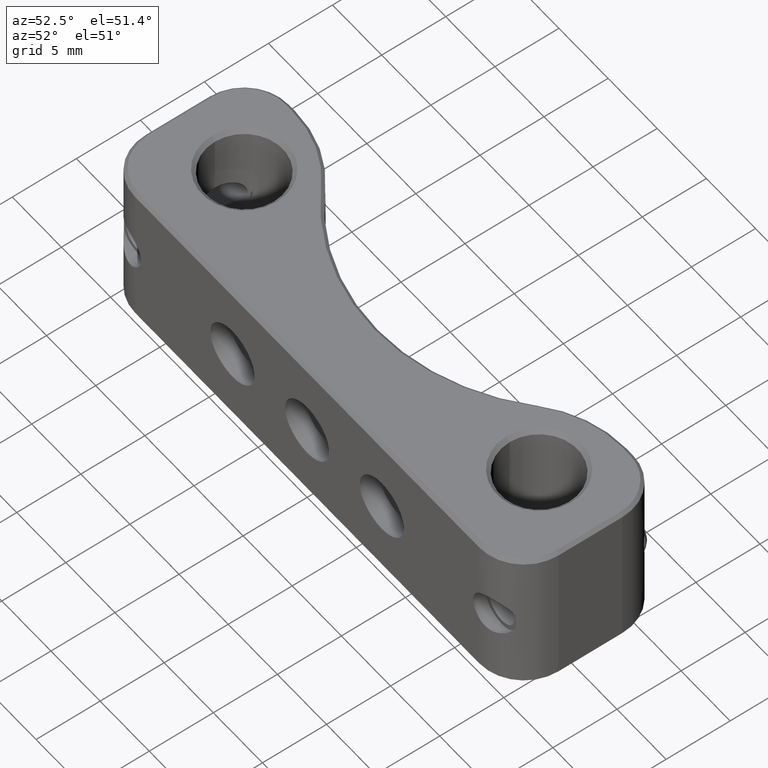
[diagram: clean part render]
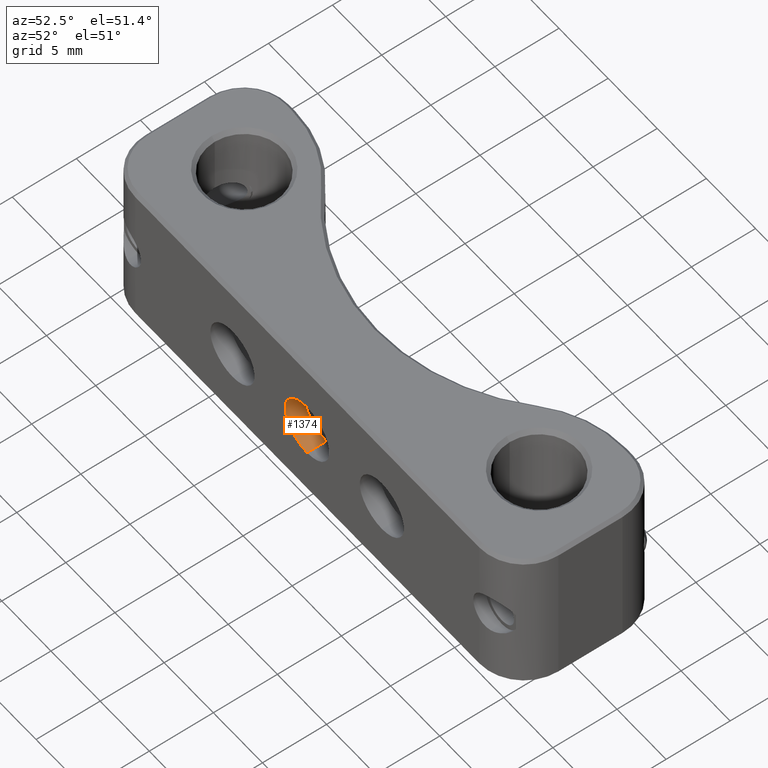
[diagram: same view with one face highlighted and labeled with its STEP entity id]
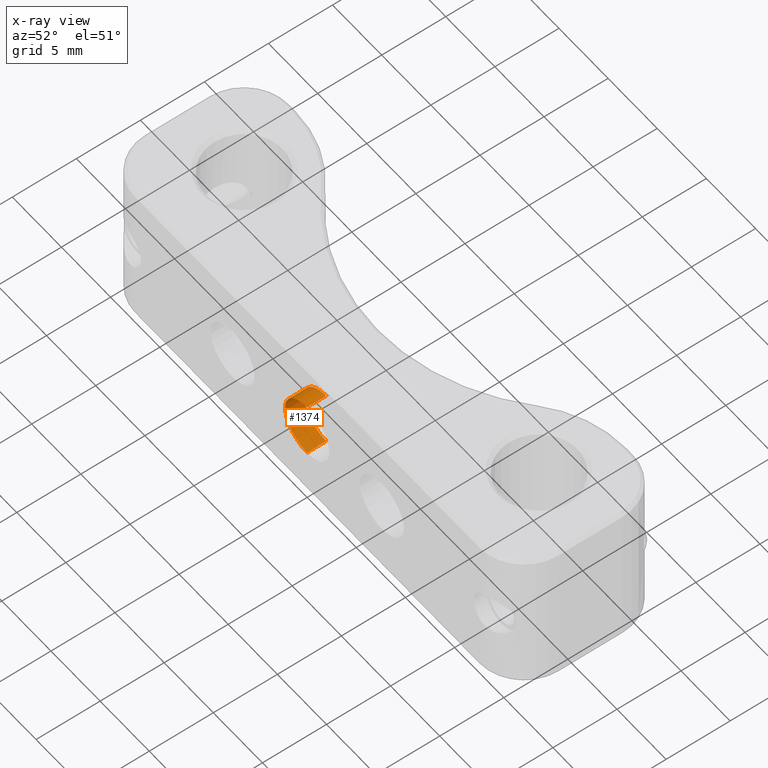
[diagram: x-ray of the same camera — body ghosted, the highlighted face saturated]
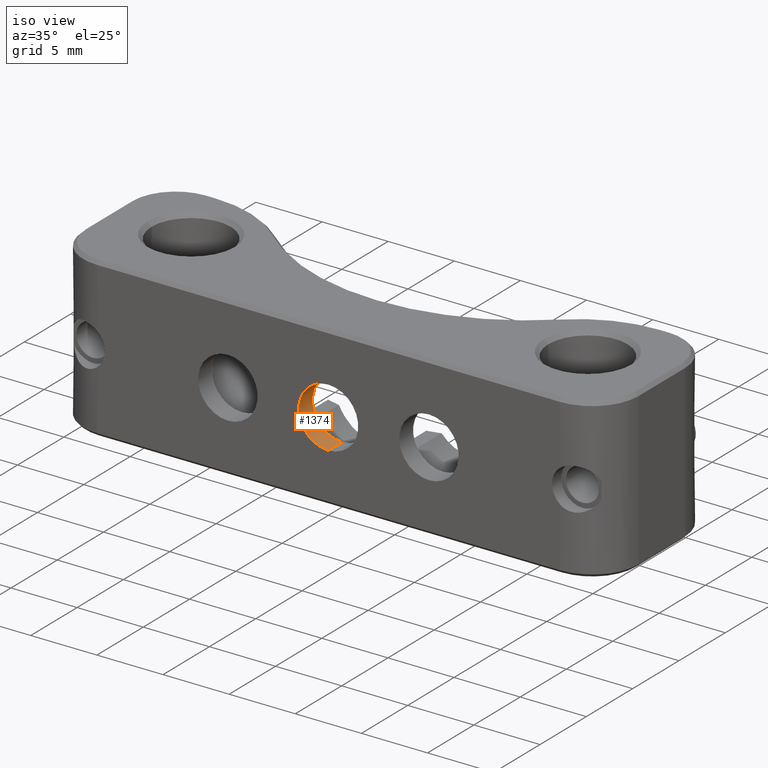
[diagram: same view with one face highlighted and labeled with its STEP entity id]
A machine part, auxiliary view. The second image highlights one B-rep face of the part: STEP entity #1374.
The next image is the same camera in x-ray: the body ghosted, the highlighted face saturated — about 0% of this face is hidden behind the body in this view.
A second angle (iso view) of the same face is appended — the face is thin or edge-on in the first view.
In plain terms, the highlighted cylindrical surface (edge-blend (fillet) strip) has radius 2.25 mm, axis along (-0, 1, -0).
Its self-contained STEP definition (entity closure, byte-faithful):
#56 = VERTEX_POINT ( 'NONE', #5358 ) ;
#245 = DIRECTION ( 'NONE',  ( -0.000000000000000000, 1.000000000000000000, -0.000000000000000000 ) ) ;
#309 = AXIS2_PLACEMENT_3D ( 'NONE', #4791, #245, #3476 ) ;
#325 = VERTEX_POINT ( 'NONE', #5379 ) ;
#462 = DIRECTION ( 'NONE',  ( 0.000000000000000000, 0.000000000000000000, 1.000000000000000000 ) ) ;
#523 = CARTESIAN_POINT ( 'NONE',  ( 0.000000000000000000, 1.499999999999994449, 2.249999999999998224 ) ) ;
#632 = VERTEX_POINT ( 'NONE', #5626 ) ;
#664 = CYLINDRICAL_SURFACE ( 'NONE', #1021, 2.249999999999997780 ) ;
#792 = FACE_OUTER_BOUND ( 'NONE', #3231, .T. ) ;
#1021 = AXIS2_PLACEMENT_3D ( 'NONE', #1462, #1649, #3425 ) ;
#1143 = VERTEX_POINT ( 'NONE', #523 ) ;
#1280 = EDGE_CURVE ( 'NONE', #632, #1143, #3764, .T. ) ;
#1295 = EDGE_CURVE ( 'NONE', #325, #1143, #3324, .T. ) ;
#1374 = ADVANCED_FACE ( 'NONE', ( #792 ), #664, .F. ) ;
#1462 = CARTESIAN_POINT ( 'NONE',  ( 0.000000000000000000, 11.99999999999999467, 0.000000000000000000 ) ) ;
#1470 = CIRCLE ( 'NONE', #1514, 2.249999999999997780 ) ;
#1514 = AXIS2_PLACEMENT_3D ( 'NONE', #5929, #3652, #462 ) ;
#1557 = ORIENTED_EDGE ( 'NONE', *, *, #1295, .T. ) ;
#1616 = EDGE_CURVE ( 'NONE', #56, #325, #4513, .T. ) ;
#1649 = DIRECTION ( 'NONE',  ( -0.000000000000000000, 1.000000000000000000, -0.000000000000000000 ) ) ;
#1912 = CARTESIAN_POINT ( 'NONE',  ( 0.000000000000000000, 11.99999999999999467, 2.249999999999997780 ) ) ;
#2659 = VECTOR ( 'NONE', #3289, 1000.000000000000000 ) ;
#2695 = ORIENTED_EDGE ( 'NONE', *, *, #4974, .F. ) ;
#2916 = CARTESIAN_POINT ( 'NONE',  ( 2.755455298081541820E-16, 11.99999999999999467, -2.249999999999997780 ) ) ;
#2957 = DIRECTION ( 'NONE',  ( -0.000000000000000000, 1.000000000000000000, -0.000000000000000000 ) ) ;
#3231 = EDGE_LOOP ( 'NONE', ( #2695, #3719, #1557, #5284 ) ) ;
#3289 = DIRECTION ( 'NONE',  ( -0.000000000000000000, 1.000000000000000000, -0.000000000000000000 ) ) ;
#3324 = CIRCLE ( 'NONE', #309, 2.249999999999998224 ) ;
#3425 = DIRECTION ( 'NONE',  ( 0.000000000000000000, 0.000000000000000000, 1.000000000000000000 ) ) ;
#3476 = DIRECTION ( 'NONE',  ( 0.000000000000000000, 0.000000000000000000, 1.000000000000000000 ) ) ;
#3652 = DIRECTION ( 'NONE',  ( -0.000000000000000000, 1.000000000000000000, -0.000000000000000000 ) ) ;
#3719 = ORIENTED_EDGE ( 'NONE', *, *, #1616, .T. ) ;
#3764 = LINE ( 'NONE', #1912, #2659 ) ;
#4513 = LINE ( 'NONE', #2916, #4935 ) ;
#4791 = CARTESIAN_POINT ( 'NONE',  ( 0.000000000000000000, 1.499999999999994449, 0.000000000000000000 ) ) ;
#4935 = VECTOR ( 'NONE', #2957, 1000.000000000000000 ) ;
#4974 = EDGE_CURVE ( 'NONE', #56, #632, #1470, .T. ) ;
#5284 = ORIENTED_EDGE ( 'NONE', *, *, #1280, .F. ) ;
#5358 = CARTESIAN_POINT ( 'NONE',  ( 2.755455298081541820E-16, -5.204170427930421283E-15, -2.249999999999997780 ) ) ;
#5379 = CARTESIAN_POINT ( 'NONE',  ( 2.755455298081542313E-16, 1.499999999999994449, -2.249999999999998224 ) ) ;
#5626 = CARTESIAN_POINT ( 'NONE',  ( 0.000000000000000000, -5.204170427930421283E-15, 2.249999999999997780 ) ) ;
#5929 = CARTESIAN_POINT ( 'NONE',  ( 0.000000000000000000, -5.204170427930421283E-15, 0.000000000000000000 ) ) ;